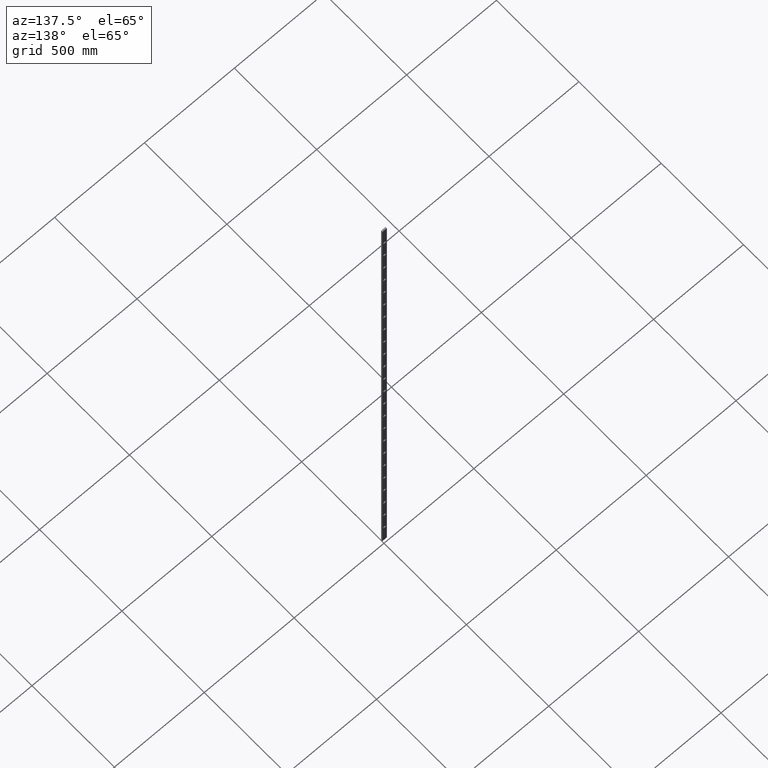
[diagram: clean part render]
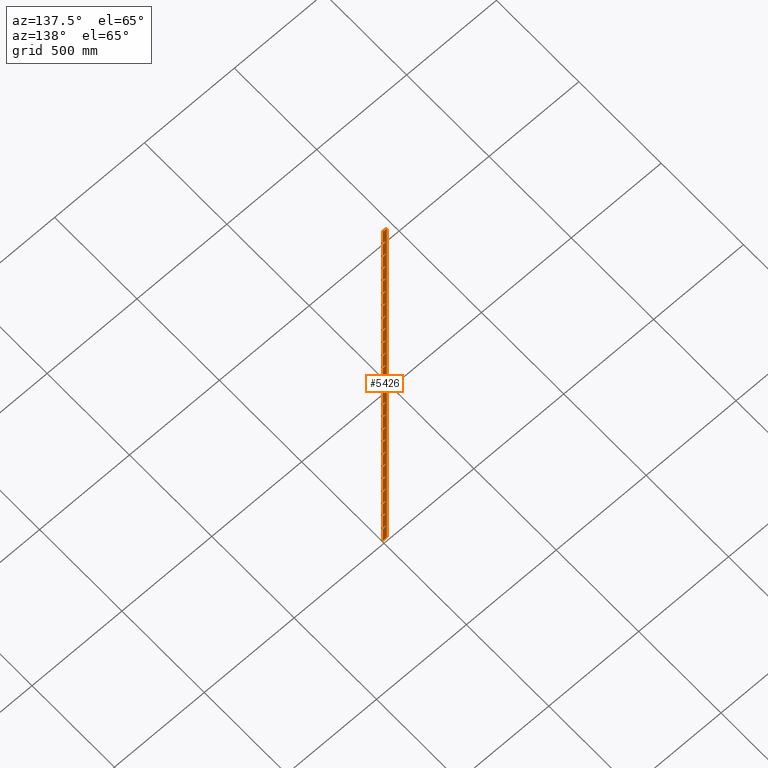
[diagram: same view with one face highlighted and labeled with its STEP entity id]
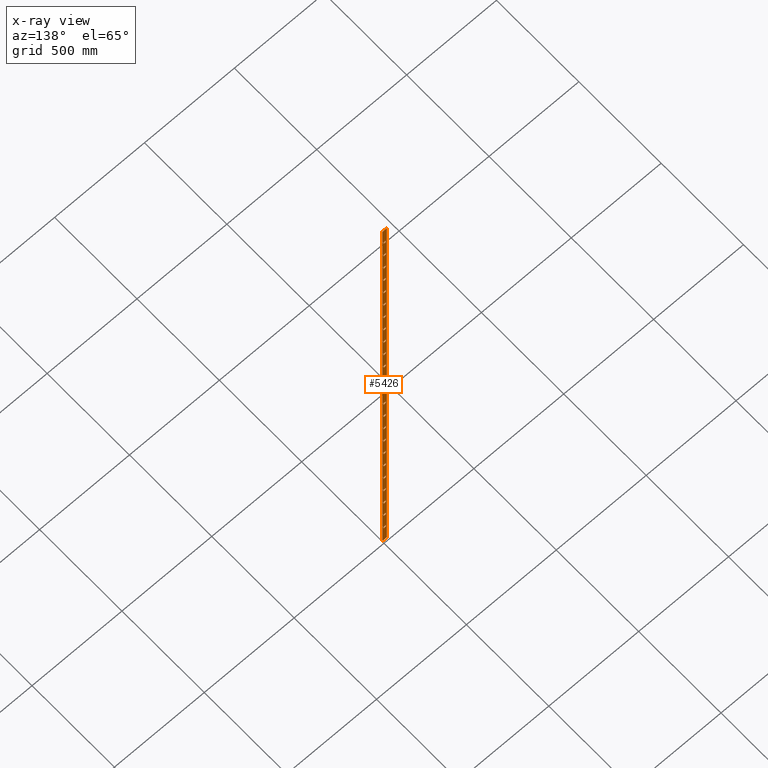
[diagram: x-ray of the same camera — body ghosted, the highlighted face saturated]
A machine part, auxiliary view. The second image highlights one B-rep face of the part: STEP entity #5426.
The next image is the same camera in x-ray: the body ghosted, the highlighted face saturated — about 0% of this face is hidden behind the body in this view.
In plain terms, the highlighted planar face has unit normal (0, 1, 0).
Its self-contained STEP definition (entity closure, byte-faithful):
#8 = ORIENTED_EDGE ( 'NONE', *, *, #14665, .F. ) ;
#11 = ORIENTED_EDGE ( 'NONE', *, *, #11156, .F. ) ;
#26 = ORIENTED_EDGE ( 'NONE', *, *, #15418, .F. ) ;
#81 = LINE ( 'NONE', #6964, #6857 ) ;
#104 = DIRECTION ( 'NONE',  ( 1.000000000000000000, 0.000000000000000000, 0.000000000000000000 ) ) ;
#112 = EDGE_LOOP ( 'NONE', ( #9555, #1159, #1870, #8434 ) ) ;
#122 = LINE ( 'NONE', #12544, #11552 ) ;
#132 = LINE ( 'NONE', #8218, #4790 ) ;
#136 = ORIENTED_EDGE ( 'NONE', *, *, #1789, .F. ) ;
#144 = LINE ( 'NONE', #11011, #15416 ) ;
#157 = CARTESIAN_POINT ( 'NONE',  ( -6.499999999999867661, 4.000000000000000000, -306.5000000000010800 ) ) ;
#205 = VECTOR ( 'NONE', #4922, 1000.000000000000000 ) ;
#257 = CARTESIAN_POINT ( 'NONE',  ( -6.499999999999674039, 4.000000000000000000, 1266.499999999997044 ) ) ;
#274 = VERTEX_POINT ( 'NONE', #16144 ) ;
#316 = ORIENTED_EDGE ( 'NONE', *, *, #3874, .F. ) ;
#320 = CARTESIAN_POINT ( 'NONE',  ( -6.499999999999718447, 4.000000000000000000, 906.4999999999976126 ) ) ;
#321 = CARTESIAN_POINT ( 'NONE',  ( -6.499999999999926281, 4.000000000000000000, -786.5000000000004547 ) ) ;
#333 = LINE ( 'NONE', #9687, #16670 ) ;
#381 = CARTESIAN_POINT ( 'NONE',  ( -6.499999999999704237, 4.000000000000000000, 1026.499999999997272 ) ) ;
#430 = VECTOR ( 'NONE', #4427, 1000.000000000000000 ) ;
#433 = VERTEX_POINT ( 'NONE', #6983 ) ;
#454 = VERTEX_POINT ( 'NONE', #4375 ) ;
#455 = LINE ( 'NONE', #1943, #14420 ) ;
#472 = EDGE_CURVE ( 'NONE', #6646, #8748, #1932, .T. ) ;
#567 = VECTOR ( 'NONE', #10297, 1000.000000000000000 ) ;
#595 = VECTOR ( 'NONE', #10506, 1000.000000000000000 ) ;
#609 = CARTESIAN_POINT ( 'NONE',  ( 6.500000000000087930, 4.000000000000000000, -666.5000000000005684 ) ) ;
#633 = LINE ( 'NONE', #11290, #4875 ) ;
#634 = DIRECTION ( 'NONE',  ( -1.000000000000000000, -0.000000000000000000, -0.000000000000000000 ) ) ;
#676 = CARTESIAN_POINT ( 'NONE',  ( 6.500000000000323297, 4.000000000000000000, 1266.499999999997044 ) ) ;
#692 = VECTOR ( 'NONE', #12667, 1000.000000000000000 ) ;
#715 = FACE_BOUND ( 'NONE', #1732, .T. ) ;
#731 = VERTEX_POINT ( 'NONE', #3787 ) ;
#741 = ORIENTED_EDGE ( 'NONE', *, *, #1764, .F. ) ;
#829 = CARTESIAN_POINT ( 'NONE',  ( -6.499999999999880096, 4.000000000000000000, -413.5000000000008527 ) ) ;
#832 = VERTEX_POINT ( 'NONE', #13553 ) ;
#838 = ORIENTED_EDGE ( 'NONE', *, *, #15717, .F. ) ;
#853 = CARTESIAN_POINT ( 'NONE',  ( -6.499999999999690914, 4.000000000000000000, 1133.499999999997499 ) ) ;
#858 = VECTOR ( 'NONE', #17502, 1000.000000000000000 ) ;
#867 = CARTESIAN_POINT ( 'NONE',  ( -6.499999999999881872, 4.000000000000000000, -426.5000000000007958 ) ) ;
#868 = ORIENTED_EDGE ( 'NONE', *, *, #7656, .F. ) ;
#870 = CARTESIAN_POINT ( 'NONE',  ( 12.50000000000000000, 4.000000000000000000, 1500.000000000000000 ) ) ;
#906 = DIRECTION ( 'NONE',  ( -0.000000000000000000, -0.000000000000000000, -1.000000000000000000 ) ) ;
#932 = EDGE_CURVE ( 'NONE', #11033, #15186, #9742, .T. ) ;
#950 = VECTOR ( 'NONE', #8914, 1000.000000000000000 ) ;
#987 = CARTESIAN_POINT ( 'NONE',  ( 6.500000000000117240, 4.000000000000000000, -426.5000000000007958 ) ) ;
#1026 = DIRECTION ( 'NONE',  ( 1.334402673828323446E-16, 0.000000000000000000, 1.000000000000000000 ) ) ;
#1064 = DIRECTION ( 'NONE',  ( 1.334402673828323446E-16, 0.000000000000000000, 1.000000000000000000 ) ) ;
#1079 = DIRECTION ( 'NONE',  ( -0.000000000000000000, -0.000000000000000000, -1.000000000000000000 ) ) ;
#1085 = VERTEX_POINT ( 'NONE', #7271 ) ;
#1108 = LINE ( 'NONE', #9952, #10840 ) ;
#1152 = VERTEX_POINT ( 'NONE', #5891 ) ;
#1159 = ORIENTED_EDGE ( 'NONE', *, *, #9698, .F. ) ;
#1197 = CARTESIAN_POINT ( 'NONE',  ( -6.499999999999865885, 4.000000000000000000, -293.5000000000011937 ) ) ;
#1200 = EDGE_LOOP ( 'NONE', ( #3992, #2651, #5140, #10631 ) ) ;
#1209 = VECTOR ( 'NONE', #7986, 1000.000000000000000 ) ;
#1222 = VERTEX_POINT ( 'NONE', #870 ) ;
#1224 = VECTOR ( 'NONE', #9019, 1000.000000000000000 ) ;
#1342 = FACE_BOUND ( 'NONE', #3926, .T. ) ;
#1383 = EDGE_LOOP ( 'NONE', ( #7542, #10688, #14170, #11117 ) ) ;
#1390 = VERTEX_POINT ( 'NONE', #10701 ) ;
#1391 = CARTESIAN_POINT ( 'NONE',  ( 6.500000000000058620, 4.000000000000000000, -906.5000000000003411 ) ) ;
#1393 = DIRECTION ( 'NONE',  ( 1.334402673828323446E-16, 0.000000000000000000, 1.000000000000000000 ) ) ;
#1411 = VERTEX_POINT ( 'NONE', #5522 ) ;
#1434 = CARTESIAN_POINT ( 'NONE',  ( -6.499999999999836575, 4.000000000000000000, -53.50000000000143530 ) ) ;
#1446 = VECTOR ( 'NONE', #12595, 1000.000000000000000 ) ;
#1489 = ORIENTED_EDGE ( 'NONE', *, *, #14560, .F. ) ;
#1509 = ORIENTED_EDGE ( 'NONE', *, *, #1794, .T. ) ;
#1520 = EDGE_CURVE ( 'NONE', #5485, #12857, #2113, .T. ) ;
#1557 = VERTEX_POINT ( 'NONE', #2200 ) ;
#1598 = VERTEX_POINT ( 'NONE', #11645 ) ;
#1611 = EDGE_CURVE ( 'NONE', #11000, #10613, #8483, .T. ) ;
#1613 = CARTESIAN_POINT ( 'NONE',  ( -6.499999999999690914, 4.000000000000000000, 1133.499999999997499 ) ) ;
#1615 = LINE ( 'NONE', #9216, #3081 ) ;
#1623 = ORIENTED_EDGE ( 'NONE', *, *, #12155, .F. ) ;
#1665 = EDGE_LOOP ( 'NONE', ( #14218, #12168, #17116, #8572 ) ) ;
#1693 = CARTESIAN_POINT ( 'NONE',  ( 6.500000000000029310, 4.000000000000000000, -1146.500000000000000 ) ) ;
#1732 = EDGE_LOOP ( 'NONE', ( #13992, #2344, #7721, #4944 ) ) ;
#1734 = EDGE_CURVE ( 'NONE', #832, #15597, #13099, .T. ) ;
#1764 = EDGE_CURVE ( 'NONE', #12073, #14718, #3594, .T. ) ;
#1767 = CARTESIAN_POINT ( 'NONE',  ( -6.499999999999823252, 4.000000000000000000, 53.49999999999855049 ) ) ;
#1789 = EDGE_CURVE ( 'NONE', #2373, #15051, #633, .T. ) ;
#1794 = EDGE_CURVE ( 'NONE', #2280, #5553, #4652, .T. ) ;
#1823 = CARTESIAN_POINT ( 'NONE',  ( -6.499999999999689138, 4.000000000000000000, 1146.499999999997499 ) ) ;
#1833 = CARTESIAN_POINT ( 'NONE',  ( 12.50000000000000000, 4.000000000000000000, -1500.000000000000000 ) ) ;
#1857 = LINE ( 'NONE', #10110, #17332 ) ;
#1870 = ORIENTED_EDGE ( 'NONE', *, *, #14455, .F. ) ;
#1932 = LINE ( 'NONE', #11118, #16153 ) ;
#1943 = CARTESIAN_POINT ( 'NONE',  ( -6.499999999999909406, 4.000000000000000000, -653.5000000000006821 ) ) ;
#1956 = CARTESIAN_POINT ( 'NONE',  ( -6.499999999999675815, 4.000000000000000000, 1253.499999999997272 ) ) ;
#1960 = EDGE_LOOP ( 'NONE', ( #10598, #1509, #7498, #7367 ) ) ;
#1975 = DIRECTION ( 'NONE',  ( -1.000000000000000000, -0.000000000000000000, -0.000000000000000000 ) ) ;
#1985 = LINE ( 'NONE', #7493, #10877 ) ;
#1990 = DIRECTION ( 'NONE',  ( -0.000000000000000000, -0.000000000000000000, -1.000000000000000000 ) ) ;
#1993 = EDGE_CURVE ( 'NONE', #2796, #832, #14601, .T. ) ;
#2009 = LINE ( 'NONE', #7445, #15831 ) ;
#2025 = LINE ( 'NONE', #7640, #9630 ) ;
#2026 = VERTEX_POINT ( 'NONE', #11528 ) ;
#2041 = LINE ( 'NONE', #1613, #16066 ) ;
#2095 = VECTOR ( 'NONE', #6874, 1000.000000000000000 ) ;
#2113 = LINE ( 'NONE', #12144, #12461 ) ;
#2132 = VECTOR ( 'NONE', #12729, 1000.000000000000000 ) ;
#2134 = DIRECTION ( 'NONE',  ( -1.000000000000000000, -0.000000000000000000, -0.000000000000000000 ) ) ;
#2138 = VECTOR ( 'NONE', #2134, 1000.000000000000000 ) ;
#2168 = VERTEX_POINT ( 'NONE', #9111 ) ;
#2200 = CARTESIAN_POINT ( 'NONE',  ( -6.499999999999909406, 4.000000000000000000, -653.5000000000006821 ) ) ;
#2262 = CARTESIAN_POINT ( 'NONE',  ( 6.500000000000234479, 4.000000000000000000, 533.4999999999980673 ) ) ;
#2280 = VERTEX_POINT ( 'NONE', #15439 ) ;
#2292 = VERTEX_POINT ( 'NONE', #15753 ) ;
#2299 = CARTESIAN_POINT ( 'NONE',  ( -6.499999999999895195, 4.000000000000000000, -533.5000000000007958 ) ) ;
#2344 = ORIENTED_EDGE ( 'NONE', *, *, #1611, .F. ) ;
#2368 = CARTESIAN_POINT ( 'NONE',  ( -6.499999999999807265, 4.000000000000000000, 186.4999999999983231 ) ) ;
#2373 = VERTEX_POINT ( 'NONE', #13417 ) ;
#2389 = ORIENTED_EDGE ( 'NONE', *, *, #3931, .F. ) ;
#2446 = VECTOR ( 'NONE', #7150, 1000.000000000000000 ) ;
#2456 = VECTOR ( 'NONE', #6204, 1000.000000000000000 ) ;
#2488 = EDGE_CURVE ( 'NONE', #15597, #16730, #5681, .T. ) ;
#2496 = CARTESIAN_POINT ( 'NONE',  ( -6.499999999999924505, 4.000000000000000000, -773.5000000000005684 ) ) ;
#2508 = DIRECTION ( 'NONE',  ( -0.000000000000000000, -0.000000000000000000, -1.000000000000000000 ) ) ;
#2598 = VECTOR ( 'NONE', #13050, 1000.000000000000000 ) ;
#2599 = DIRECTION ( 'NONE',  ( 1.000000000000000000, 0.000000000000000000, 0.000000000000000000 ) ) ;
#2618 = FACE_BOUND ( 'NONE', #8747, .T. ) ;
#2632 = EDGE_LOOP ( 'NONE', ( #11428, #3205, #4092, #8 ) ) ;
#2651 = ORIENTED_EDGE ( 'NONE', *, *, #16377, .F. ) ;
#2681 = CARTESIAN_POINT ( 'NONE',  ( 6.500000000000249578, 4.000000000000000000, 666.4999999999978400 ) ) ;
#2686 = CARTESIAN_POINT ( 'NONE',  ( -6.499999999999706013, 4.000000000000000000, 1013.499999999997385 ) ) ;
#2700 = LINE ( 'NONE', #14736, #1209 ) ;
#2705 = DIRECTION ( 'NONE',  ( -0.000000000000000000, -0.000000000000000000, -1.000000000000000000 ) ) ;
#2730 = EDGE_CURVE ( 'NONE', #8695, #6849, #9690, .T. ) ;
#2772 = ORIENTED_EDGE ( 'NONE', *, *, #932, .F. ) ;
#2776 = DIRECTION ( 'NONE',  ( -0.000000000000000000, -0.000000000000000000, -1.000000000000000000 ) ) ;
#2796 = VERTEX_POINT ( 'NONE', #12137 ) ;
#2804 = LINE ( 'NONE', #4329, #17458 ) ;
#2808 = VECTOR ( 'NONE', #5715, 1000.000000000000000 ) ;
#2824 = DIRECTION ( 'NONE',  ( -0.000000000000000000, -0.000000000000000000, -1.000000000000000000 ) ) ;
#2847 = VECTOR ( 'NONE', #2776, 1000.000000000000000 ) ;
#2848 = CARTESIAN_POINT ( 'NONE',  ( 6.500000000000117240, 4.000000000000000000, -413.5000000000008527 ) ) ;
#2856 = VECTOR ( 'NONE', #634, 1000.000000000000000 ) ;
#2888 = DIRECTION ( 'NONE',  ( -1.000000000000000000, -0.000000000000000000, -0.000000000000000000 ) ) ;
#2893 = DIRECTION ( 'NONE',  ( 1.334402673828323446E-16, 0.000000000000000000, 1.000000000000000000 ) ) ;
#2906 = VECTOR ( 'NONE', #14764, 1000.000000000000000 ) ;
#2925 = VECTOR ( 'NONE', #10433, 1000.000000000000000 ) ;
#2934 = EDGE_CURVE ( 'NONE', #1222, #2280, #10968, .T. ) ;
#2974 = VERTEX_POINT ( 'NONE', #12401 ) ;
#3019 = DIRECTION ( 'NONE',  ( 1.000000000000000000, 0.000000000000000000, 0.000000000000000000 ) ) ;
#3036 = FACE_BOUND ( 'NONE', #10480, .T. ) ;
#3049 = LINE ( 'NONE', #9736, #3889 ) ;
#3075 = EDGE_LOOP ( 'NONE', ( #26, #3540, #16780, #14277 ) ) ;
#3077 = CARTESIAN_POINT ( 'NONE',  ( -6.499999999999968914, 4.000000000000000000, -1133.500000000000227 ) ) ;
#3081 = VECTOR ( 'NONE', #16018, 1000.000000000000000 ) ;
#3085 = VERTEX_POINT ( 'NONE', #11697 ) ;
#3094 = LINE ( 'NONE', #8012, #9239 ) ;
#3118 = VERTEX_POINT ( 'NONE', #14497 ) ;
#3124 = DIRECTION ( 'NONE',  ( 1.334402673828323446E-16, 0.000000000000000000, 1.000000000000000000 ) ) ;
#3152 = EDGE_LOOP ( 'NONE', ( #14832, #8920, #1489, #5782 ) ) ;
#3161 = VERTEX_POINT ( 'NONE', #5035 ) ;
#3173 = VERTEX_POINT ( 'NONE', #14676 ) ;
#3187 = CARTESIAN_POINT ( 'NONE',  ( -6.499999999999735323, 4.000000000000000000, 773.4999999999976126 ) ) ;
#3196 = DIRECTION ( 'NONE',  ( 1.334402673828323446E-16, 0.000000000000000000, 1.000000000000000000 ) ) ;
#3205 = ORIENTED_EDGE ( 'NONE', *, *, #9663, .F. ) ;
#3208 = DIRECTION ( 'NONE',  ( 1.000000000000000000, 0.000000000000000000, 0.000000000000000000 ) ) ;
#3220 = CARTESIAN_POINT ( 'NONE',  ( 6.500000000000278888, 4.000000000000000000, 893.4999999999977263 ) ) ;
#3242 = EDGE_CURVE ( 'NONE', #6655, #3161, #7971, .T. ) ;
#3254 = VERTEX_POINT ( 'NONE', #9334 ) ;
#3275 = VECTOR ( 'NONE', #6629, 1000.000000000000000 ) ;
#3277 = CARTESIAN_POINT ( 'NONE',  ( 6.500000000000293987, 4.000000000000000000, 1026.499999999997272 ) ) ;
#3319 = ORIENTED_EDGE ( 'NONE', *, *, #5252, .F. ) ;
#3374 = CARTESIAN_POINT ( 'NONE',  ( 6.500000000000117240, 4.000000000000000000, -426.5000000000007958 ) ) ;
#3397 = CARTESIAN_POINT ( 'NONE',  ( 6.500000000000190958, 4.000000000000000000, 186.4999999999983231 ) ) ;
#3416 = VERTEX_POINT ( 'NONE', #12739 ) ;
#3458 = VECTOR ( 'NONE', #15660, 1000.000000000000000 ) ;
#3481 = EDGE_CURVE ( 'NONE', #1152, #16333, #122, .T. ) ;
#3540 = ORIENTED_EDGE ( 'NONE', *, *, #10876, .F. ) ;
#3553 = LINE ( 'NONE', #7818, #1224 ) ;
#3579 = CARTESIAN_POINT ( 'NONE',  ( -6.499999999999911182, 4.000000000000000000, -666.5000000000005684 ) ) ;
#3594 = LINE ( 'NONE', #3187, #7832 ) ;
#3607 = CARTESIAN_POINT ( 'NONE',  ( -6.499999999999838352, 4.000000000000000000, -66.50000000000133582 ) ) ;
#3615 = CARTESIAN_POINT ( 'NONE',  ( -6.499999999999865885, 4.000000000000000000, -293.5000000000011937 ) ) ;
#3623 = CARTESIAN_POINT ( 'NONE',  ( -6.499999999999926281, 4.000000000000000000, -786.5000000000004547 ) ) ;
#3625 = VERTEX_POINT ( 'NONE', #11204 ) ;
#3633 = CARTESIAN_POINT ( 'NONE',  ( 6.500000000000323297, 4.000000000000000000, 1253.499999999997272 ) ) ;
#3657 = VERTEX_POINT ( 'NONE', #9410 ) ;
#3659 = FACE_OUTER_BOUND ( 'NONE', #1960, .T. ) ;
#3669 = EDGE_CURVE ( 'NONE', #5702, #7916, #13872, .T. ) ;
#3691 = CARTESIAN_POINT ( 'NONE',  ( 6.500000000000293987, 4.000000000000000000, 1013.499999999997385 ) ) ;
#3755 = DIRECTION ( 'NONE',  ( 1.000000000000000000, 0.000000000000000000, 0.000000000000000000 ) ) ;
#3757 = LINE ( 'NONE', #867, #16493 ) ;
#3779 = EDGE_LOOP ( 'NONE', ( #9074, #13528, #17179, #12552 ) ) ;
#3787 = CARTESIAN_POINT ( 'NONE',  ( -6.499999999999998224, 4.000000000000000000, -1373.500000000000000 ) ) ;
#3832 = LINE ( 'NONE', #5484, #12916 ) ;
#3874 = EDGE_CURVE ( 'NONE', #454, #433, #6883, .T. ) ;
#3887 = CARTESIAN_POINT ( 'NONE',  ( 6.500000000000014211, 4.000000000000000000, -1253.499999999999773 ) ) ;
#3889 = VECTOR ( 'NONE', #2824, 1000.000000000000000 ) ;
#3890 = ORIENTED_EDGE ( 'NONE', *, *, #8901, .F. ) ;
#3894 = EDGE_LOOP ( 'NONE', ( #17587, #8152, #11101, #13069 ) ) ;
#3926 = EDGE_LOOP ( 'NONE', ( #3974, #6628, #17143, #9428 ) ) ;
#3931 = EDGE_CURVE ( 'NONE', #3118, #10992, #8386, .T. ) ;
#3939 = VECTOR ( 'NONE', #7127, 1000.000000000000000 ) ;
#3948 = CARTESIAN_POINT ( 'NONE',  ( 6.500000000000058620, 4.000000000000000000, -906.5000000000003411 ) ) ;
#3974 = ORIENTED_EDGE ( 'NONE', *, *, #3242, .F. ) ;
#3992 = ORIENTED_EDGE ( 'NONE', *, *, #15915, .F. ) ;
#3994 = EDGE_CURVE ( 'NONE', #14718, #11033, #9833, .T. ) ;
#4012 = CARTESIAN_POINT ( 'NONE',  ( 6.500000000000043521, 4.000000000000000000, -1026.500000000000227 ) ) ;
#4042 = DIRECTION ( 'NONE',  ( 1.334402673828323446E-16, 0.000000000000000000, 1.000000000000000000 ) ) ;
#4043 = CARTESIAN_POINT ( 'NONE',  ( 0.000000000000000000, 4.000000000000000000, 0.000000000000000000 ) ) ;
#4048 = EDGE_CURVE ( 'NONE', #8778, #5162, #10069, .T. ) ;
#4092 = ORIENTED_EDGE ( 'NONE', *, *, #17154, .F. ) ;
#4094 = DIRECTION ( 'NONE',  ( -0.000000000000000000, -0.000000000000000000, -1.000000000000000000 ) ) ;
#4101 = CARTESIAN_POINT ( 'NONE',  ( -6.499999999999747757, 4.000000000000000000, 666.4999999999978400 ) ) ;
#4193 = VECTOR ( 'NONE', #6992, 1000.000000000000000 ) ;
#4201 = EDGE_CURVE ( 'NONE', #6894, #11612, #333, .T. ) ;
#4220 = DIRECTION ( 'NONE',  ( 0.000000000000000000, 1.000000000000000000, 0.000000000000000000 ) ) ;
#4259 = VERTEX_POINT ( 'NONE', #1693 ) ;
#4280 = VERTEX_POINT ( 'NONE', #4101 ) ;
#4308 = FACE_BOUND ( 'NONE', #16086, .T. ) ;
#4320 = CARTESIAN_POINT ( 'NONE',  ( 6.500000000000000000, 4.000000000000000000, -1373.500000000000000 ) ) ;
#4329 = CARTESIAN_POINT ( 'NONE',  ( -6.499999999999762856, 4.000000000000000000, 546.4999999999979536 ) ) ;
#4349 = LINE ( 'NONE', #829, #567 ) ;
#4353 = CARTESIAN_POINT ( 'NONE',  ( 6.500000000000029310, 4.000000000000000000, -1146.500000000000000 ) ) ;
#4375 = CARTESIAN_POINT ( 'NONE',  ( -6.499999999999777955, 4.000000000000000000, 426.4999999999981242 ) ) ;
#4376 = DIRECTION ( 'NONE',  ( 1.000000000000000000, 0.000000000000000000, 0.000000000000000000 ) ) ;
#4379 = VECTOR ( 'NONE', #15876, 1000.000000000000000 ) ;
#4402 = ORIENTED_EDGE ( 'NONE', *, *, #4987, .F. ) ;
#4427 = DIRECTION ( 'NONE',  ( 1.334402673828323446E-16, 0.000000000000000000, 1.000000000000000000 ) ) ;
#4441 = DIRECTION ( 'NONE',  ( 1.000000000000000000, 0.000000000000000000, 0.000000000000000000 ) ) ;
#4455 = DIRECTION ( 'NONE',  ( 1.334402673828323446E-16, 0.000000000000000000, 1.000000000000000000 ) ) ;
#4484 = CARTESIAN_POINT ( 'NONE',  ( 6.500000000000205169, 4.000000000000000000, 293.4999999999982947 ) ) ;
#4522 = ORIENTED_EDGE ( 'NONE', *, *, #9417, .F. ) ;
#4527 = CARTESIAN_POINT ( 'NONE',  ( 6.500000000000043521, 4.000000000000000000, -1013.500000000000341 ) ) ;
#4538 = ORIENTED_EDGE ( 'NONE', *, *, #3669, .F. ) ;
#4587 = EDGE_CURVE ( 'NONE', #11971, #3173, #9602, .T. ) ;
#4612 = LINE ( 'NONE', #17280, #595 ) ;
#4625 = ORIENTED_EDGE ( 'NONE', *, *, #1734, .F. ) ;
#4652 = LINE ( 'NONE', #1833, #15924 ) ;
#4658 = CARTESIAN_POINT ( 'NONE',  ( -6.499999999999720224, 4.000000000000000000, 893.4999999999977263 ) ) ;
#4670 = DIRECTION ( 'NONE',  ( -1.000000000000000000, -0.000000000000000000, -0.000000000000000000 ) ) ;
#4685 = EDGE_LOOP ( 'NONE', ( #12518, #316, #11880, #868 ) ) ;
#4709 = ORIENTED_EDGE ( 'NONE', *, *, #11365, .F. ) ;
#4712 = VECTOR ( 'NONE', #15380, 1000.000000000000000 ) ;
#4748 = VECTOR ( 'NONE', #13541, 1000.000000000000000 ) ;
#4753 = VECTOR ( 'NONE', #1064, 1000.000000000000000 ) ;
#4790 = VECTOR ( 'NONE', #104, 1000.000000000000000 ) ;
#4875 = VECTOR ( 'NONE', #4670, 1000.000000000000000 ) ;
#4922 = DIRECTION ( 'NONE',  ( 1.000000000000000000, 0.000000000000000000, 0.000000000000000000 ) ) ;
#4928 = VERTEX_POINT ( 'NONE', #3397 ) ;
#4944 = ORIENTED_EDGE ( 'NONE', *, *, #17405, .F. ) ;
#4954 = DIRECTION ( 'NONE',  ( 1.000000000000000000, 0.000000000000000000, 0.000000000000000000 ) ) ;
#4958 = VERTEX_POINT ( 'NONE', #6106 ) ;
#4966 = VERTEX_POINT ( 'NONE', #853 ) ;
#4987 = EDGE_CURVE ( 'NONE', #11990, #14826, #1985, .T. ) ;
#4994 = VECTOR ( 'NONE', #1393, 1000.000000000000000 ) ;
#5025 = VECTOR ( 'NONE', #4094, 1000.000000000000000 ) ;
#5031 = DIRECTION ( 'NONE',  ( -1.000000000000000000, -0.000000000000000000, -0.000000000000000000 ) ) ;
#5035 = CARTESIAN_POINT ( 'NONE',  ( 6.500000000000146549, 4.000000000000000000, -186.5000000000012221 ) ) ;
#5041 = VECTOR ( 'NONE', #3755, 1000.000000000000000 ) ;
#5043 = CARTESIAN_POINT ( 'NONE',  ( -6.499999999999792166, 4.000000000000000000, 306.4999999999982379 ) ) ;
#5063 = CARTESIAN_POINT ( 'NONE',  ( -6.499999999999733546, 4.000000000000000000, 786.4999999999974989 ) ) ;
#5100 = EDGE_CURVE ( 'NONE', #5553, #17245, #81, .T. ) ;
#5106 = VERTEX_POINT ( 'NONE', #1823 ) ;
#5108 = VERTEX_POINT ( 'NONE', #16465 ) ;
#5116 = DIRECTION ( 'NONE',  ( -1.000000000000000000, -0.000000000000000000, -0.000000000000000000 ) ) ;
#5140 = ORIENTED_EDGE ( 'NONE', *, *, #15289, .F. ) ;
#5146 = CARTESIAN_POINT ( 'NONE',  ( -6.499999999999706013, 4.000000000000000000, 1013.499999999997385 ) ) ;
#5162 = VERTEX_POINT ( 'NONE', #15513 ) ;
#5177 = DIRECTION ( 'NONE',  ( -0.000000000000000000, -0.000000000000000000, -1.000000000000000000 ) ) ;
#5189 = VECTOR ( 'NONE', #14172, 1000.000000000000000 ) ;
#5218 = CARTESIAN_POINT ( 'NONE',  ( -6.499999999999896083, 4.000000000000000000, -546.5000000000006821 ) ) ;
#5252 = EDGE_CURVE ( 'NONE', #4259, #11990, #6428, .T. ) ;
#5294 = CARTESIAN_POINT ( 'NONE',  ( -6.499999999999675815, 4.000000000000000000, 1253.499999999997272 ) ) ;
#5318 = CARTESIAN_POINT ( 'NONE',  ( 6.500000000000205169, 4.000000000000000000, 293.4999999999982947 ) ) ;
#5361 = FACE_BOUND ( 'NONE', #10279, .T. ) ;
#5426 = ADVANCED_FACE ( 'NONE', ( #3659, #14898, #17045, #2618, #5783, #8986, #4308, #3036, #5361, #13820, #715, #1342, #6624, #14698, #16632, #7285, #8125, #17251, #11288, #12967, #10009, #11076, #8562, #15790, #7703 ), #14660, .T. ) ;
#5466 = VERTEX_POINT ( 'NONE', #6955 ) ;
#5484 = CARTESIAN_POINT ( 'NONE',  ( -6.499999999999823252, 4.000000000000000000, 53.49999999999855049 ) ) ;
#5485 = VERTEX_POINT ( 'NONE', #16585 ) ;
#5508 = LINE ( 'NONE', #3579, #12045 ) ;
#5522 = CARTESIAN_POINT ( 'NONE',  ( 6.500000000000131450, 4.000000000000000000, -306.5000000000010800 ) ) ;
#5553 = VERTEX_POINT ( 'NONE', #13916 ) ;
#5563 = LINE ( 'NONE', #5294, #15997 ) ;
#5638 = VECTOR ( 'NONE', #14893, 1000.000000000000000 ) ;
#5676 = CARTESIAN_POINT ( 'NONE',  ( -6.499999999999779732, 4.000000000000000000, 413.4999999999981810 ) ) ;
#5681 = LINE ( 'NONE', #1434, #2095 ) ;
#5702 = VERTEX_POINT ( 'NONE', #2299 ) ;
#5715 = DIRECTION ( 'NONE',  ( -0.000000000000000000, -0.000000000000000000, -1.000000000000000000 ) ) ;
#5719 = CARTESIAN_POINT ( 'NONE',  ( -6.499999999999838352, 4.000000000000000000, -66.50000000000133582 ) ) ;
#5764 = LINE ( 'NONE', #13277, #13372 ) ;
#5782 = ORIENTED_EDGE ( 'NONE', *, *, #16951, .F. ) ;
#5783 = FACE_BOUND ( 'NONE', #16228, .T. ) ;
#5785 = DIRECTION ( 'NONE',  ( -1.000000000000000000, 0.000000000000000000, 0.000000000000000000 ) ) ;
#5891 = CARTESIAN_POINT ( 'NONE',  ( -6.499999999999720224, 4.000000000000000000, 893.4999999999977263 ) ) ;
#5980 = EDGE_CURVE ( 'NONE', #5466, #4966, #12748, .T. ) ;
#5984 = VECTOR ( 'NONE', #1975, 1000.000000000000000 ) ;
#6014 = DIRECTION ( 'NONE',  ( 1.334402673828323446E-16, 0.000000000000000000, 1.000000000000000000 ) ) ;
#6060 = CARTESIAN_POINT ( 'NONE',  ( -6.499999999999867661, 4.000000000000000000, -306.5000000000010800 ) ) ;
#6102 = VECTOR ( 'NONE', #7452, 1000.000000000000000 ) ;
#6106 = CARTESIAN_POINT ( 'NONE',  ( -6.499999999999779732, 4.000000000000000000, 413.4999999999981810 ) ) ;
#6113 = VERTEX_POINT ( 'NONE', #14313 ) ;
#6128 = CARTESIAN_POINT ( 'NONE',  ( -6.499999999999809042, 4.000000000000000000, 173.4999999999984368 ) ) ;
#6139 = VECTOR ( 'NONE', #13079, 1000.000000000000000 ) ;
#6183 = ORIENTED_EDGE ( 'NONE', *, *, #1993, .F. ) ;
#6190 = LINE ( 'NONE', #7591, #2598 ) ;
#6199 = LINE ( 'NONE', #10165, #12757 ) ;
#6204 = DIRECTION ( 'NONE',  ( -0.000000000000000000, -0.000000000000000000, -1.000000000000000000 ) ) ;
#6212 = EDGE_CURVE ( 'NONE', #3085, #9106, #6190, .T. ) ;
#6237 = EDGE_CURVE ( 'NONE', #13547, #9984, #12767, .T. ) ;
#6260 = VECTOR ( 'NONE', #3019, 1000.000000000000000 ) ;
#6287 = EDGE_CURVE ( 'NONE', #7226, #11376, #8359, .T. ) ;
#6296 = VECTOR ( 'NONE', #5177, 1000.000000000000000 ) ;
#6318 = CARTESIAN_POINT ( 'NONE',  ( -6.499999999999733546, 4.000000000000000000, 786.4999999999974989 ) ) ;
#6350 = CARTESIAN_POINT ( 'NONE',  ( -6.499999999999938716, 4.000000000000000000, -893.5000000000004547 ) ) ;
#6352 = CARTESIAN_POINT ( 'NONE',  ( -6.499999999999807265, 4.000000000000000000, 186.4999999999983231 ) ) ;
#6373 = ORIENTED_EDGE ( 'NONE', *, *, #17004, .F. ) ;
#6375 = LINE ( 'NONE', #17153, #8098 ) ;
#6415 = EDGE_CURVE ( 'NONE', #11354, #2168, #13590, .T. ) ;
#6428 = LINE ( 'NONE', #15066, #4748 ) ;
#6451 = LINE ( 'NONE', #4012, #2847 ) ;
#6453 = ORIENTED_EDGE ( 'NONE', *, *, #9670, .F. ) ;
#6495 = LINE ( 'NONE', #13491, #5638 ) ;
#6500 = CARTESIAN_POINT ( 'NONE',  ( -6.499999999999764633, 4.000000000000000000, 533.4999999999980673 ) ) ;
#6552 = CARTESIAN_POINT ( 'NONE',  ( 6.500000000000278888, 4.000000000000000000, 893.4999999999977263 ) ) ;
#6556 = ORIENTED_EDGE ( 'NONE', *, *, #10081, .F. ) ;
#6559 = LINE ( 'NONE', #3633, #6139 ) ;
#6596 = CARTESIAN_POINT ( 'NONE',  ( 6.500000000000058620, 4.000000000000000000, -893.5000000000004547 ) ) ;
#6603 = VECTOR ( 'NONE', #16362, 1000.000000000000000 ) ;
#6624 = FACE_BOUND ( 'NONE', #6938, .T. ) ;
#6628 = ORIENTED_EDGE ( 'NONE', *, *, #16058, .F. ) ;
#6629 = DIRECTION ( 'NONE',  ( -0.000000000000000000, -0.000000000000000000, -1.000000000000000000 ) ) ;
#6636 = VERTEX_POINT ( 'NONE', #1956 ) ;
#6646 = VERTEX_POINT ( 'NONE', #609 ) ;
#6653 = LINE ( 'NONE', #14340, #950 ) ;
#6655 = VERTEX_POINT ( 'NONE', #7305 ) ;
#6700 = VECTOR ( 'NONE', #2508, 1000.000000000000000 ) ;
#6710 = DIRECTION ( 'NONE',  ( 1.000000000000000000, -0.000000000000000000, -0.000000000000000000 ) ) ;
#6825 = LINE ( 'NONE', #6060, #5984 ) ;
#6829 = DIRECTION ( 'NONE',  ( 1.334402673828323446E-16, 0.000000000000000000, 1.000000000000000000 ) ) ;
#6849 = VERTEX_POINT ( 'NONE', #2262 ) ;
#6857 = VECTOR ( 'NONE', #7211, 1000.000000000000000 ) ;
#6865 = LINE ( 'NONE', #3077, #8150 ) ;
#6872 = CARTESIAN_POINT ( 'NONE',  ( 6.500000000000205169, 4.000000000000000000, 306.4999999999982379 ) ) ;
#6874 = DIRECTION ( 'NONE',  ( 1.000000000000000000, 0.000000000000000000, 0.000000000000000000 ) ) ;
#6883 = LINE ( 'NONE', #13924, #2446 ) ;
#6894 = VERTEX_POINT ( 'NONE', #13703 ) ;
#6915 = CARTESIAN_POINT ( 'NONE',  ( 6.500000000000220268, 4.000000000000000000, 413.4999999999981810 ) ) ;
#6938 = EDGE_LOOP ( 'NONE', ( #10005, #14515, #4625, #6183 ) ) ;
#6951 = ORIENTED_EDGE ( 'NONE', *, *, #11912, .F. ) ;
#6955 = CARTESIAN_POINT ( 'NONE',  ( 6.500000000000308198, 4.000000000000000000, 1133.499999999997499 ) ) ;
#6964 = CARTESIAN_POINT ( 'NONE',  ( -12.50000000000000000, 4.000000000000000000, 1500.000000000000000 ) ) ;
#6969 = VERTEX_POINT ( 'NONE', #6596 ) ;
#6983 = CARTESIAN_POINT ( 'NONE',  ( 6.500000000000220268, 4.000000000000000000, 426.4999999999981242 ) ) ;
#6992 = DIRECTION ( 'NONE',  ( 0.000000000000000000, 0.000000000000000000, -1.000000000000000000 ) ) ;
#7037 = LINE ( 'NONE', #12546, #4712 ) ;
#7056 = LINE ( 'NONE', #7135, #3458 ) ;
#7127 = DIRECTION ( 'NONE',  ( 1.334402673828323446E-16, 0.000000000000000000, 1.000000000000000000 ) ) ;
#7135 = CARTESIAN_POINT ( 'NONE',  ( 6.500000000000249578, 4.000000000000000000, 653.4999999999979536 ) ) ;
#7150 = DIRECTION ( 'NONE',  ( 1.000000000000000000, 0.000000000000000000, 0.000000000000000000 ) ) ;
#7162 = DIRECTION ( 'NONE',  ( -0.000000000000000000, -0.000000000000000000, -1.000000000000000000 ) ) ;
#7195 = DIRECTION ( 'NONE',  ( -1.000000000000000000, -0.000000000000000000, -0.000000000000000000 ) ) ;
#7206 = ORIENTED_EDGE ( 'NONE', *, *, #472, .F. ) ;
#7211 = DIRECTION ( 'NONE',  ( -0.000000000000000000, -0.000000000000000000, 1.000000000000000000 ) ) ;
#7226 = VERTEX_POINT ( 'NONE', #1767 ) ;
#7256 = VERTEX_POINT ( 'NONE', #16830 ) ;
#7260 = EDGE_CURVE ( 'NONE', #14015, #3625, #7056, .T. ) ;
#7271 = CARTESIAN_POINT ( 'NONE',  ( 6.500000000000190958, 4.000000000000000000, 173.4999999999984368 ) ) ;
#7285 = FACE_BOUND ( 'NONE', #13691, .T. ) ;
#7288 = CARTESIAN_POINT ( 'NONE',  ( -6.499999999999867661, 4.000000000000000000, -306.5000000000010800 ) ) ;
#7305 = CARTESIAN_POINT ( 'NONE',  ( 6.500000000000146549, 4.000000000000000000, -173.5000000000013074 ) ) ;
#7344 = EDGE_CURVE ( 'NONE', #13901, #15563, #5764, .T. ) ;
#7346 = VERTEX_POINT ( 'NONE', #3948 ) ;
#7367 = ORIENTED_EDGE ( 'NONE', *, *, #11812, .T. ) ;
#7401 = VERTEX_POINT ( 'NONE', #15662 ) ;
#7411 = VECTOR ( 'NONE', #14374, 1000.000000000000000 ) ;
#7416 = CARTESIAN_POINT ( 'NONE',  ( 6.500000000000338396, 4.000000000000000000, 1373.499999999997272 ) ) ;
#7445 = CARTESIAN_POINT ( 'NONE',  ( 6.500000000000160760, 4.000000000000000000, -66.50000000000133582 ) ) ;
#7452 = DIRECTION ( 'NONE',  ( -0.000000000000000000, -0.000000000000000000, -1.000000000000000000 ) ) ;
#7493 = CARTESIAN_POINT ( 'NONE',  ( -6.499999999999969802, 4.000000000000000000, -1146.500000000000000 ) ) ;
#7498 = ORIENTED_EDGE ( 'NONE', *, *, #5100, .T. ) ;
#7542 = ORIENTED_EDGE ( 'NONE', *, *, #15612, .F. ) ;
#7560 = LINE ( 'NONE', #5676, #3939 ) ;
#7591 = CARTESIAN_POINT ( 'NONE',  ( -6.499999999999793943, 4.000000000000000000, 293.4999999999982947 ) ) ;
#7602 = EDGE_CURVE ( 'NONE', #4280, #14015, #15533, .T. ) ;
#7628 = CARTESIAN_POINT ( 'NONE',  ( -6.499999999999851674, 4.000000000000000000, -173.5000000000013074 ) ) ;
#7640 = CARTESIAN_POINT ( 'NONE',  ( -6.499999999999675815, 4.000000000000000000, 1253.499999999997272 ) ) ;
#7656 = EDGE_CURVE ( 'NONE', #274, #4958, #1108, .T. ) ;
#7680 = EDGE_CURVE ( 'NONE', #10992, #5702, #7037, .T. ) ;
#7703 = FACE_BOUND ( 'NONE', #11306, .T. ) ;
#7721 = ORIENTED_EDGE ( 'NONE', *, *, #9140, .F. ) ;
#7735 = CARTESIAN_POINT ( 'NONE',  ( -6.499999999999953815, 4.000000000000000000, -1013.500000000000341 ) ) ;
#7747 = VERTEX_POINT ( 'NONE', #676 ) ;
#7789 = CARTESIAN_POINT ( 'NONE',  ( 6.500000000000264677, 4.000000000000000000, 773.4999999999976126 ) ) ;
#7818 = CARTESIAN_POINT ( 'NONE',  ( -6.499999999999940492, 4.000000000000000000, -906.5000000000003411 ) ) ;
#7832 = VECTOR ( 'NONE', #9917, 1000.000000000000000 ) ;
#7875 = ORIENTED_EDGE ( 'NONE', *, *, #14782, .F. ) ;
#7887 = CARTESIAN_POINT ( 'NONE',  ( -6.499999999999853451, 4.000000000000000000, -186.5000000000012221 ) ) ;
#7916 = VERTEX_POINT ( 'NONE', #14311 ) ;
#7926 = CARTESIAN_POINT ( 'NONE',  ( 6.500000000000146549, 4.000000000000000000, -186.5000000000012221 ) ) ;
#7946 = LINE ( 'NONE', #2686, #4994 ) ;
#7971 = LINE ( 'NONE', #7926, #15625 ) ;
#7986 = DIRECTION ( 'NONE',  ( 1.000000000000000000, 0.000000000000000000, 1.708035422500241074E-14 ) ) ;
#8001 = VECTOR ( 'NONE', #13846, 1000.000000000000000 ) ;
#8012 = CARTESIAN_POINT ( 'NONE',  ( 6.500000000000103029, 4.000000000000000000, -546.5000000000006821 ) ) ;
#8015 = LINE ( 'NONE', #4484, #13269 ) ;
#8083 = CARTESIAN_POINT ( 'NONE',  ( -6.499999999999674039, 4.000000000000000000, 1266.499999999997044 ) ) ;
#8090 = VERTEX_POINT ( 'NONE', #157 ) ;
#8098 = VECTOR ( 'NONE', #14407, 1000.000000000000000 ) ;
#8110 = CARTESIAN_POINT ( 'NONE',  ( -6.499999999999998224, 4.000000000000000000, -1373.500000000000000 ) ) ;
#8125 = FACE_BOUND ( 'NONE', #4685, .T. ) ;
#8150 = VECTOR ( 'NONE', #4376, 1000.000000000000000 ) ;
#8152 = ORIENTED_EDGE ( 'NONE', *, *, #14730, .F. ) ;
#8188 = ORIENTED_EDGE ( 'NONE', *, *, #11135, .F. ) ;
#8218 = CARTESIAN_POINT ( 'NONE',  ( -6.499999999999821476, 4.000000000000000000, 66.49999999999845102 ) ) ;
#8317 = CARTESIAN_POINT ( 'NONE',  ( 6.500000000000293987, 4.000000000000000000, 1013.499999999997385 ) ) ;
#8318 = VECTOR ( 'NONE', #9472, 1000.000000000000000 ) ;
#8359 = LINE ( 'NONE', #14499, #4753 ) ;
#8362 = EDGE_CURVE ( 'NONE', #3625, #2974, #6375, .T. ) ;
#8377 = VECTOR ( 'NONE', #4954, 1000.000000000000000 ) ;
#8380 = DIRECTION ( 'NONE',  ( -0.000000000000000000, -0.000000000000000000, -1.000000000000000000 ) ) ;
#8386 = LINE ( 'NONE', #8866, #2856 ) ;
#8414 = VECTOR ( 'NONE', #12832, 1000.000000000000000 ) ;
#8416 = DIRECTION ( 'NONE',  ( -0.000000000000000000, -0.000000000000000000, -1.000000000000000000 ) ) ;
#8434 = ORIENTED_EDGE ( 'NONE', *, *, #5980, .F. ) ;
#8483 = LINE ( 'NONE', #3615, #205 ) ;
#8495 = VECTOR ( 'NONE', #5116, 1000.000000000000000 ) ;
#8519 = CARTESIAN_POINT ( 'NONE',  ( 6.500000000000264677, 4.000000000000000000, 773.4999999999976126 ) ) ;
#8558 = VERTEX_POINT ( 'NONE', #257 ) ;
#8562 = FACE_BOUND ( 'NONE', #112, .T. ) ;
#8569 = EDGE_CURVE ( 'NONE', #5162, #8695, #2804, .T. ) ;
#8572 = ORIENTED_EDGE ( 'NONE', *, *, #11267, .F. ) ;
#8591 = LINE ( 'NONE', #11941, #3275 ) ;
#8617 = CARTESIAN_POINT ( 'NONE',  ( 6.500000000000234479, 4.000000000000000000, 546.4999999999979536 ) ) ;
#8695 = VERTEX_POINT ( 'NONE', #8617 ) ;
#8720 = VECTOR ( 'NONE', #14580, 1000.000000000000000 ) ;
#8747 = EDGE_LOOP ( 'NONE', ( #9262, #12747, #4709, #16612 ) ) ;
#8748 = VERTEX_POINT ( 'NONE', #15540 ) ;
#8751 = EDGE_CURVE ( 'NONE', #12704, #3254, #13981, .T. ) ;
#8759 = LINE ( 'NONE', #12305, #692 ) ;
#8778 = VERTEX_POINT ( 'NONE', #6500 ) ;
#8787 = DIRECTION ( 'NONE',  ( -0.000000000000000000, -0.000000000000000000, -1.000000000000000000 ) ) ;
#8804 = EDGE_CURVE ( 'NONE', #9106, #16168, #16161, .T. ) ;
#8806 = LINE ( 'NONE', #4658, #5189 ) ;
#8808 = CARTESIAN_POINT ( 'NONE',  ( -6.499999999999735323, 4.000000000000000000, 773.4999999999976126 ) ) ;
#8866 = CARTESIAN_POINT ( 'NONE',  ( -6.499999999999896083, 4.000000000000000000, -546.5000000000006821 ) ) ;
#8867 = LINE ( 'NONE', #7416, #13699 ) ;
#8869 = CARTESIAN_POINT ( 'NONE',  ( -6.499999999999661604, 4.000000000000000000, 1373.499999999997272 ) ) ;
#8901 = EDGE_CURVE ( 'NONE', #12644, #7226, #3832, .T. ) ;
#8914 = DIRECTION ( 'NONE',  ( 1.000000000000000000, 0.000000000000000000, 0.000000000000000000 ) ) ;
#8917 = CARTESIAN_POINT ( 'NONE',  ( -6.499999999999735323, 4.000000000000000000, 773.4999999999976126 ) ) ;
#8920 = ORIENTED_EDGE ( 'NONE', *, *, #15177, .F. ) ;
#8944 = VERTEX_POINT ( 'NONE', #5318 ) ;
#8986 = FACE_BOUND ( 'NONE', #1383, .T. ) ;
#8996 = DIRECTION ( 'NONE',  ( -0.000000000000000000, -0.000000000000000000, -1.000000000000000000 ) ) ;
#9019 = DIRECTION ( 'NONE',  ( -1.000000000000000000, -0.000000000000000000, -0.000000000000000000 ) ) ;
#9028 = CARTESIAN_POINT ( 'NONE',  ( 6.500000000000323297, 4.000000000000000000, 1253.499999999997272 ) ) ;
#9056 = EDGE_CURVE ( 'NONE', #433, #274, #17409, .T. ) ;
#9074 = ORIENTED_EDGE ( 'NONE', *, *, #7260, .F. ) ;
#9106 = VERTEX_POINT ( 'NONE', #9918 ) ;
#9111 = CARTESIAN_POINT ( 'NONE',  ( 6.500000000000073719, 4.000000000000000000, -786.5000000000004547 ) ) ;
#9140 = EDGE_CURVE ( 'NONE', #8090, #11000, #10808, .T. ) ;
#9169 = EDGE_CURVE ( 'NONE', #1557, #1598, #455, .T. ) ;
#9174 = DIRECTION ( 'NONE',  ( 1.000000000000000000, 0.000000000000000000, 0.000000000000000000 ) ) ;
#9187 = VECTOR ( 'NONE', #13112, 1000.000000000000000 ) ;
#9209 = ORIENTED_EDGE ( 'NONE', *, *, #3994, .F. ) ;
#9216 = CARTESIAN_POINT ( 'NONE',  ( -6.499999999999924505, 4.000000000000000000, -773.5000000000005684 ) ) ;
#9235 = ORIENTED_EDGE ( 'NONE', *, *, #6415, .F. ) ;
#9239 = VECTOR ( 'NONE', #1079, 1000.000000000000000 ) ;
#9262 = ORIENTED_EDGE ( 'NONE', *, *, #12184, .F. ) ;
#9267 = LINE ( 'NONE', #321, #1446 ) ;
#9334 = CARTESIAN_POINT ( 'NONE',  ( -6.499999999999881872, 4.000000000000000000, -426.5000000000007958 ) ) ;
#9357 = ORIENTED_EDGE ( 'NONE', *, *, #11488, .F. ) ;
#9410 = CARTESIAN_POINT ( 'NONE',  ( 6.500000000000278888, 4.000000000000000000, 906.4999999999976126 ) ) ;
#9417 = EDGE_CURVE ( 'NONE', #15137, #4259, #12897, .T. ) ;
#9424 = CARTESIAN_POINT ( 'NONE',  ( -6.499999999999747757, 4.000000000000000000, 666.4999999999978400 ) ) ;
#9428 = ORIENTED_EDGE ( 'NONE', *, *, #11019, .F. ) ;
#9472 = DIRECTION ( 'NONE',  ( 1.000000000000000000, 0.000000000000000000, 0.000000000000000000 ) ) ;
#9479 = CARTESIAN_POINT ( 'NONE',  ( -6.499999999999793943, 4.000000000000000000, 293.4999999999982947 ) ) ;
#9527 = EDGE_CURVE ( 'NONE', #7747, #14290, #6559, .T. ) ;
#9555 = ORIENTED_EDGE ( 'NONE', *, *, #13488, .F. ) ;
#9586 = EDGE_CURVE ( 'NONE', #8748, #1557, #5508, .T. ) ;
#9602 = LINE ( 'NONE', #11676, #13625 ) ;
#9630 = VECTOR ( 'NONE', #5031, 1000.000000000000000 ) ;
#9662 = LINE ( 'NONE', #6350, #5041 ) ;
#9663 = EDGE_CURVE ( 'NONE', #8558, #7747, #15719, .T. ) ;
#9670 = EDGE_CURVE ( 'NONE', #6849, #8778, #14402, .T. ) ;
#9681 = VECTOR ( 'NONE', #13821, 1000.000000000000000 ) ;
#9687 = CARTESIAN_POINT ( 'NONE',  ( -6.499999999999853451, 4.000000000000000000, -186.5000000000012221 ) ) ;
#9690 = LINE ( 'NONE', #10104, #6102 ) ;
#9698 = EDGE_CURVE ( 'NONE', #5106, #1390, #12698, .T. ) ;
#9721 = DIRECTION ( 'NONE',  ( -0.000000000000000000, -0.000000000000000000, -1.000000000000000000 ) ) ;
#9736 = CARTESIAN_POINT ( 'NONE',  ( 6.500000000000000000, 4.000000000000000000, -1386.499999999999773 ) ) ;
#9742 = LINE ( 'NONE', #8519, #2132 ) ;
#9833 = LINE ( 'NONE', #5063, #15822 ) ;
#9840 = LINE ( 'NONE', #10411, #2456 ) ;
#9917 = DIRECTION ( 'NONE',  ( 1.334402673828323446E-16, 0.000000000000000000, 1.000000000000000000 ) ) ;
#9918 = CARTESIAN_POINT ( 'NONE',  ( -6.499999999999792166, 4.000000000000000000, 306.4999999999982379 ) ) ;
#9952 = CARTESIAN_POINT ( 'NONE',  ( -6.499999999999779732, 4.000000000000000000, 413.4999999999981810 ) ) ;
#9970 = ORIENTED_EDGE ( 'NONE', *, *, #8569, .F. ) ;
#9984 = VERTEX_POINT ( 'NONE', #15850 ) ;
#10005 = ORIENTED_EDGE ( 'NONE', *, *, #15067, .F. ) ;
#10009 = FACE_BOUND ( 'NONE', #3075, .T. ) ;
#10069 = LINE ( 'NONE', #14211, #10276 ) ;
#10081 = EDGE_CURVE ( 'NONE', #731, #14479, #17184, .T. ) ;
#10104 = CARTESIAN_POINT ( 'NONE',  ( 6.500000000000234479, 4.000000000000000000, 533.4999999999980673 ) ) ;
#10110 = CARTESIAN_POINT ( 'NONE',  ( -6.499999999999984901, 4.000000000000000000, -1266.500000000000000 ) ) ;
#10165 = CARTESIAN_POINT ( 'NONE',  ( 6.500000000000087930, 4.000000000000000000, -666.5000000000005684 ) ) ;
#10192 = VECTOR ( 'NONE', #8416, 1000.000000000000000 ) ;
#10199 = CARTESIAN_POINT ( 'NONE',  ( -6.499999999999984901, 4.000000000000000000, -1266.500000000000000 ) ) ;
#10276 = VECTOR ( 'NONE', #1026, 1000.000000000000000 ) ;
#10279 = EDGE_LOOP ( 'NONE', ( #12975, #4538, #12566, #2389 ) ) ;
#10297 = DIRECTION ( 'NONE',  ( 1.000000000000000000, 0.000000000000000000, 0.000000000000000000 ) ) ;
#10317 = DIRECTION ( 'NONE',  ( 1.334402673828323446E-16, 0.000000000000000000, 1.000000000000000000 ) ) ;
#10411 = CARTESIAN_POINT ( 'NONE',  ( 6.500000000000131450, 4.000000000000000000, -306.5000000000010800 ) ) ;
#10433 = DIRECTION ( 'NONE',  ( 1.000000000000000000, 0.000000000000000000, 0.000000000000000000 ) ) ;
#10480 = EDGE_LOOP ( 'NONE', ( #6373, #15172, #11629, #7206 ) ) ;
#10506 = DIRECTION ( 'NONE',  ( 1.334402673828323446E-16, 0.000000000000000000, 1.000000000000000000 ) ) ;
#10526 = VERTEX_POINT ( 'NONE', #12016 ) ;
#10598 = ORIENTED_EDGE ( 'NONE', *, *, #2934, .T. ) ;
#10613 = VERTEX_POINT ( 'NONE', #13431 ) ;
#10629 = LINE ( 'NONE', #15382, #12736 ) ;
#10631 = ORIENTED_EDGE ( 'NONE', *, *, #6237, .F. ) ;
#10666 = VECTOR ( 'NONE', #4441, 1000.000000000000000 ) ;
#10675 = CARTESIAN_POINT ( 'NONE',  ( -6.500000000000000000, 4.000000000000000000, -1386.499999999999773 ) ) ;
#10685 = LINE ( 'NONE', #3691, #16425 ) ;
#10688 = ORIENTED_EDGE ( 'NONE', *, *, #15958, .F. ) ;
#10701 = CARTESIAN_POINT ( 'NONE',  ( 6.500000000000308198, 4.000000000000000000, 1146.499999999997499 ) ) ;
#10713 = CARTESIAN_POINT ( 'NONE',  ( -6.499999999999836575, 4.000000000000000000, -53.50000000000143530 ) ) ;
#10716 = LINE ( 'NONE', #3623, #8414 ) ;
#10718 = CARTESIAN_POINT ( 'NONE',  ( 12.50000000000000000, 4.000000000000000000, 1500.000000000000000 ) ) ;
#10725 = CARTESIAN_POINT ( 'NONE',  ( -6.499999999999764633, 4.000000000000000000, 533.4999999999980673 ) ) ;
#10767 = VERTEX_POINT ( 'NONE', #10199 ) ;
#10808 = LINE ( 'NONE', #7288, #13335 ) ;
#10840 = VECTOR ( 'NONE', #7195, 1000.000000000000000 ) ;
#10876 = EDGE_CURVE ( 'NONE', #16333, #3657, #12014, .T. ) ;
#10877 = VECTOR ( 'NONE', #10317, 1000.000000000000000 ) ;
#10899 = LINE ( 'NONE', #3220, #11930 ) ;
#10960 = LINE ( 'NONE', #14120, #14791 ) ;
#10968 = LINE ( 'NONE', #10718, #4193 ) ;
#10992 = VERTEX_POINT ( 'NONE', #5218 ) ;
#11000 = VERTEX_POINT ( 'NONE', #1197 ) ;
#11008 = VECTOR ( 'NONE', #9721, 1000.000000000000000 ) ;
#11011 = CARTESIAN_POINT ( 'NONE',  ( 6.500000000000308198, 4.000000000000000000, 1133.499999999997499 ) ) ;
#11016 = EDGE_LOOP ( 'NONE', ( #2772, #9209, #741, #1623 ) ) ;
#11019 = EDGE_CURVE ( 'NONE', #3161, #6894, #17543, .T. ) ;
#11033 = VERTEX_POINT ( 'NONE', #13471 ) ;
#11076 = FACE_BOUND ( 'NONE', #1200, .T. ) ;
#11101 = ORIENTED_EDGE ( 'NONE', *, *, #13089, .F. ) ;
#11111 = CARTESIAN_POINT ( 'NONE',  ( -6.499999999999984901, 4.000000000000000000, -1266.500000000000000 ) ) ;
#11117 = ORIENTED_EDGE ( 'NONE', *, *, #4587, .F. ) ;
#11118 = CARTESIAN_POINT ( 'NONE',  ( -6.499999999999911182, 4.000000000000000000, -666.5000000000005684 ) ) ;
#11135 = EDGE_CURVE ( 'NONE', #7256, #15546, #9267, .T. ) ;
#11149 = LINE ( 'NONE', #1391, #5025 ) ;
#11156 = EDGE_CURVE ( 'NONE', #15563, #2373, #8867, .T. ) ;
#11176 = CARTESIAN_POINT ( 'NONE',  ( -6.499999999999809042, 4.000000000000000000, 173.4999999999984368 ) ) ;
#11204 = CARTESIAN_POINT ( 'NONE',  ( 6.500000000000249578, 4.000000000000000000, 653.4999999999979536 ) ) ;
#11267 = EDGE_CURVE ( 'NONE', #7346, #5485, #3553, .T. ) ;
#11288 = FACE_BOUND ( 'NONE', #3779, .T. ) ;
#11290 = CARTESIAN_POINT ( 'NONE',  ( -6.499999999999661604, 4.000000000000000000, 1373.499999999997272 ) ) ;
#11291 = DIRECTION ( 'NONE',  ( 1.334402673828323446E-16, 0.000000000000000000, 1.000000000000000000 ) ) ;
#11306 = EDGE_LOOP ( 'NONE', ( #11, #16046, #6951, #136 ) ) ;
#11346 = CARTESIAN_POINT ( 'NONE',  ( -6.500000000000000000, 4.000000000000000000, -1386.499999999999773 ) ) ;
#11354 = VERTEX_POINT ( 'NONE', #12448 ) ;
#11365 = EDGE_CURVE ( 'NONE', #10767, #2026, #12000, .T. ) ;
#11376 = VERTEX_POINT ( 'NONE', #13570 ) ;
#11415 = EDGE_CURVE ( 'NONE', #16168, #8944, #8015, .T. ) ;
#11428 = ORIENTED_EDGE ( 'NONE', *, *, #9527, .F. ) ;
#11429 = VERTEX_POINT ( 'NONE', #11346 ) ;
#11488 = EDGE_CURVE ( 'NONE', #11429, #731, #10960, .T. ) ;
#11495 = ORIENTED_EDGE ( 'NONE', *, *, #16703, .F. ) ;
#11514 = DIRECTION ( 'NONE',  ( -1.000000000000000000, -0.000000000000000000, -1.708035422500241074E-14 ) ) ;
#11528 = CARTESIAN_POINT ( 'NONE',  ( -6.499999999999983125, 4.000000000000000000, -1253.500000000000000 ) ) ;
#11552 = VECTOR ( 'NONE', #4455, 1000.000000000000000 ) ;
#11572 = LINE ( 'NONE', #10675, #8001 ) ;
#11593 = EDGE_CURVE ( 'NONE', #12710, #10767, #1857, .T. ) ;
#11612 = VERTEX_POINT ( 'NONE', #7628 ) ;
#11629 = ORIENTED_EDGE ( 'NONE', *, *, #9586, .F. ) ;
#11645 = CARTESIAN_POINT ( 'NONE',  ( 6.500000000000087930, 4.000000000000000000, -653.5000000000006821 ) ) ;
#11665 = CARTESIAN_POINT ( 'NONE',  ( 6.500000000000014211, 4.000000000000000000, -1266.499999999999773 ) ) ;
#11676 = CARTESIAN_POINT ( 'NONE',  ( -6.499999999999955591, 4.000000000000000000, -1026.500000000000227 ) ) ;
#11697 = CARTESIAN_POINT ( 'NONE',  ( -6.499999999999793943, 4.000000000000000000, 293.4999999999982947 ) ) ;
#11735 = LINE ( 'NONE', #6352, #8377 ) ;
#11812 = EDGE_CURVE ( 'NONE', #17245, #1222, #12829, .T. ) ;
#11840 = EDGE_CURVE ( 'NONE', #8944, #3085, #15650, .T. ) ;
#11880 = ORIENTED_EDGE ( 'NONE', *, *, #14144, .F. ) ;
#11889 = CARTESIAN_POINT ( 'NONE',  ( -6.499999999999689138, 4.000000000000000000, 1146.499999999997499 ) ) ;
#11903 = CARTESIAN_POINT ( 'NONE',  ( 12.50000000000000000, 4.000000000000000000, 1500.000000000000000 ) ) ;
#11912 = EDGE_CURVE ( 'NONE', #15051, #13901, #6495, .T. ) ;
#11930 = VECTOR ( 'NONE', #906, 1000.000000000000000 ) ;
#11941 = CARTESIAN_POINT ( 'NONE',  ( 6.500000000000190958, 4.000000000000000000, 173.4999999999984368 ) ) ;
#11971 = VERTEX_POINT ( 'NONE', #13859 ) ;
#11990 = VERTEX_POINT ( 'NONE', #16641 ) ;
#11998 = VERTEX_POINT ( 'NONE', #4527 ) ;
#12000 = LINE ( 'NONE', #11111, #9681 ) ;
#12006 = ORIENTED_EDGE ( 'NONE', *, *, #6212, .F. ) ;
#12014 = LINE ( 'NONE', #14399, #2925 ) ;
#12016 = CARTESIAN_POINT ( 'NONE',  ( 6.500000000000000000, 4.000000000000000000, -1386.499999999999773 ) ) ;
#12045 = VECTOR ( 'NONE', #14523, 1000.000000000000000 ) ;
#12073 = VERTEX_POINT ( 'NONE', #8808 ) ;
#12123 = LINE ( 'NONE', #381, #10666 ) ;
#12137 = CARTESIAN_POINT ( 'NONE',  ( 6.500000000000160760, 4.000000000000000000, -66.50000000000133582 ) ) ;
#12144 = CARTESIAN_POINT ( 'NONE',  ( -6.499999999999940492, 4.000000000000000000, -906.5000000000003411 ) ) ;
#12155 = EDGE_CURVE ( 'NONE', #15186, #12073, #12614, .T. ) ;
#12168 = ORIENTED_EDGE ( 'NONE', *, *, #13316, .F. ) ;
#12184 = EDGE_CURVE ( 'NONE', #12895, #12710, #13911, .T. ) ;
#12210 = EDGE_LOOP ( 'NONE', ( #12476, #11495, #6556, #9357 ) ) ;
#12234 = CARTESIAN_POINT ( 'NONE',  ( -6.499999999999895195, 4.000000000000000000, -533.5000000000007958 ) ) ;
#12305 = CARTESIAN_POINT ( 'NONE',  ( 6.500000000000175859, 4.000000000000000000, 53.49999999999855049 ) ) ;
#12341 = CARTESIAN_POINT ( 'NONE',  ( -6.499999999999690914, 4.000000000000000000, 1133.499999999997499 ) ) ;
#12401 = CARTESIAN_POINT ( 'NONE',  ( -6.499999999999749534, 4.000000000000000000, 653.4999999999979536 ) ) ;
#12448 = CARTESIAN_POINT ( 'NONE',  ( 6.500000000000073719, 4.000000000000000000, -773.5000000000005684 ) ) ;
#12461 = VECTOR ( 'NONE', #4042, 1000.000000000000000 ) ;
#12476 = ORIENTED_EDGE ( 'NONE', *, *, #13517, .F. ) ;
#12518 = ORIENTED_EDGE ( 'NONE', *, *, #9056, .F. ) ;
#12544 = CARTESIAN_POINT ( 'NONE',  ( -6.499999999999720224, 4.000000000000000000, 893.4999999999977263 ) ) ;
#12546 = CARTESIAN_POINT ( 'NONE',  ( -6.499999999999896083, 4.000000000000000000, -546.5000000000006821 ) ) ;
#12552 = ORIENTED_EDGE ( 'NONE', *, *, #8362, .F. ) ;
#12566 = ORIENTED_EDGE ( 'NONE', *, *, #7680, .F. ) ;
#12595 = DIRECTION ( 'NONE',  ( 1.334402673828323446E-16, 0.000000000000000000, 1.000000000000000000 ) ) ;
#12614 = LINE ( 'NONE', #8917, #4379 ) ;
#12633 = VECTOR ( 'NONE', #6710, 1000.000000000000000 ) ;
#12644 = VERTEX_POINT ( 'NONE', #16552 ) ;
#12667 = DIRECTION ( 'NONE',  ( -0.000000000000000000, -0.000000000000000000, -1.000000000000000000 ) ) ;
#12698 = LINE ( 'NONE', #11889, #8720 ) ;
#12704 = VERTEX_POINT ( 'NONE', #3374 ) ;
#12710 = VERTEX_POINT ( 'NONE', #16849 ) ;
#12729 = DIRECTION ( 'NONE',  ( -0.000000000000000000, -0.000000000000000000, -1.000000000000000000 ) ) ;
#12736 = VECTOR ( 'NONE', #15437, 1000.000000000000000 ) ;
#12739 = CARTESIAN_POINT ( 'NONE',  ( -6.499999999999704237, 4.000000000000000000, 1026.499999999997272 ) ) ;
#12747 = ORIENTED_EDGE ( 'NONE', *, *, #12881, .F. ) ;
#12748 = LINE ( 'NONE', #12341, #6603 ) ;
#12757 = VECTOR ( 'NONE', #8996, 1000.000000000000000 ) ;
#12767 = LINE ( 'NONE', #5146, #9187 ) ;
#12829 = LINE ( 'NONE', #11903, #12633 ) ;
#12832 = DIRECTION ( 'NONE',  ( -1.000000000000000000, -0.000000000000000000, -0.000000000000000000 ) ) ;
#12857 = VERTEX_POINT ( 'NONE', #13333 ) ;
#12881 = EDGE_CURVE ( 'NONE', #2026, #12895, #2700, .T. ) ;
#12895 = VERTEX_POINT ( 'NONE', #3887 ) ;
#12897 = LINE ( 'NONE', #4353, #11008 ) ;
#12916 = VECTOR ( 'NONE', #16301, 1000.000000000000000 ) ;
#12967 = FACE_BOUND ( 'NONE', #11016, .T. ) ;
#12975 = ORIENTED_EDGE ( 'NONE', *, *, #14378, .F. ) ;
#13050 = DIRECTION ( 'NONE',  ( 1.334402673828323446E-16, 0.000000000000000000, 1.000000000000000000 ) ) ;
#13069 = ORIENTED_EDGE ( 'NONE', *, *, #8751, .F. ) ;
#13079 = DIRECTION ( 'NONE',  ( -0.000000000000000000, -0.000000000000000000, -1.000000000000000000 ) ) ;
#13089 = EDGE_CURVE ( 'NONE', #3254, #7401, #3757, .T. ) ;
#13099 = LINE ( 'NONE', #5719, #430 ) ;
#13112 = DIRECTION ( 'NONE',  ( -1.000000000000000000, -0.000000000000000000, -0.000000000000000000 ) ) ;
#13195 = EDGE_CURVE ( 'NONE', #14121, #12704, #13474, .T. ) ;
#13269 = VECTOR ( 'NONE', #7162, 1000.000000000000000 ) ;
#13276 = ORIENTED_EDGE ( 'NONE', *, *, #11840, .F. ) ;
#13277 = CARTESIAN_POINT ( 'NONE',  ( -6.499999999999659828, 4.000000000000000000, 1386.499999999997272 ) ) ;
#13314 = EDGE_CURVE ( 'NONE', #3173, #2292, #4612, .T. ) ;
#13316 = EDGE_CURVE ( 'NONE', #12857, #6969, #9662, .T. ) ;
#13333 = CARTESIAN_POINT ( 'NONE',  ( -6.499999999999938716, 4.000000000000000000, -893.5000000000004547 ) ) ;
#13335 = VECTOR ( 'NONE', #11291, 1000.000000000000000 ) ;
#13366 = EDGE_LOOP ( 'NONE', ( #14017, #17315, #14395, #3890 ) ) ;
#13372 = VECTOR ( 'NONE', #2599, 1000.000000000000000 ) ;
#13375 = VECTOR ( 'NONE', #15585, 1000.000000000000000 ) ;
#13417 = CARTESIAN_POINT ( 'NONE',  ( 6.500000000000338396, 4.000000000000000000, 1373.499999999997272 ) ) ;
#13431 = CARTESIAN_POINT ( 'NONE',  ( 6.500000000000131450, 4.000000000000000000, -293.5000000000011937 ) ) ;
#13465 = EDGE_CURVE ( 'NONE', #6969, #7346, #11149, .T. ) ;
#13471 = CARTESIAN_POINT ( 'NONE',  ( 6.500000000000264677, 4.000000000000000000, 786.4999999999974989 ) ) ;
#13474 = LINE ( 'NONE', #987, #6296 ) ;
#13488 = EDGE_CURVE ( 'NONE', #1390, #5466, #144, .T. ) ;
#13491 = CARTESIAN_POINT ( 'NONE',  ( -6.499999999999661604, 4.000000000000000000, 1373.499999999997272 ) ) ;
#13517 = EDGE_CURVE ( 'NONE', #10526, #11429, #11572, .T. ) ;
#13528 = ORIENTED_EDGE ( 'NONE', *, *, #7602, .F. ) ;
#13541 = DIRECTION ( 'NONE',  ( -1.000000000000000000, -0.000000000000000000, -0.000000000000000000 ) ) ;
#13547 = VERTEX_POINT ( 'NONE', #8317 ) ;
#13553 = CARTESIAN_POINT ( 'NONE',  ( -6.499999999999838352, 4.000000000000000000, -66.50000000000133582 ) ) ;
#13570 = CARTESIAN_POINT ( 'NONE',  ( -6.499999999999821476, 4.000000000000000000, 66.49999999999845102 ) ) ;
#13590 = LINE ( 'NONE', #15219, #2808 ) ;
#13625 = VECTOR ( 'NONE', #15584, 1000.000000000000000 ) ;
#13645 = VERTEX_POINT ( 'NONE', #3277 ) ;
#13691 = EDGE_LOOP ( 'NONE', ( #14697, #14562, #12006, #13276 ) ) ;
#13699 = VECTOR ( 'NONE', #8787, 1000.000000000000000 ) ;
#13703 = CARTESIAN_POINT ( 'NONE',  ( -6.499999999999853451, 4.000000000000000000, -186.5000000000012221 ) ) ;
#13820 = FACE_BOUND ( 'NONE', #3894, .T. ) ;
#13821 = DIRECTION ( 'NONE',  ( 1.334402673828323446E-16, 0.000000000000000000, 1.000000000000000000 ) ) ;
#13846 = DIRECTION ( 'NONE',  ( -1.000000000000000000, -0.000000000000000000, -0.000000000000000000 ) ) ;
#13859 = CARTESIAN_POINT ( 'NONE',  ( 6.500000000000043521, 4.000000000000000000, -1026.500000000000227 ) ) ;
#13872 = LINE ( 'NONE', #12234, #6260 ) ;
#13901 = VERTEX_POINT ( 'NONE', #14805 ) ;
#13911 = LINE ( 'NONE', #11665, #6700 ) ;
#13916 = CARTESIAN_POINT ( 'NONE',  ( -12.50000000000000000, 4.000000000000000000, -1500.000000000000000 ) ) ;
#13924 = CARTESIAN_POINT ( 'NONE',  ( -6.499999999999777955, 4.000000000000000000, 426.4999999999981242 ) ) ;
#13981 = LINE ( 'NONE', #15609, #2138 ) ;
#13991 = ORIENTED_EDGE ( 'NONE', *, *, #4048, .F. ) ;
#13992 = ORIENTED_EDGE ( 'NONE', *, *, #14707, .F. ) ;
#14015 = VERTEX_POINT ( 'NONE', #2681 ) ;
#14017 = ORIENTED_EDGE ( 'NONE', *, *, #17313, .F. ) ;
#14060 = LINE ( 'NONE', #7735, #16659 ) ;
#14120 = CARTESIAN_POINT ( 'NONE',  ( -6.500000000000000000, 4.000000000000000000, -1386.499999999999773 ) ) ;
#14121 = VERTEX_POINT ( 'NONE', #2848 ) ;
#14144 = EDGE_CURVE ( 'NONE', #4958, #454, #7560, .T. ) ;
#14170 = ORIENTED_EDGE ( 'NONE', *, *, #13314, .F. ) ;
#14172 = DIRECTION ( 'NONE',  ( -1.000000000000000000, -0.000000000000000000, -0.000000000000000000 ) ) ;
#14193 = AXIS2_PLACEMENT_3D ( 'NONE', #4043, #4220, #16397 ) ;
#14211 = CARTESIAN_POINT ( 'NONE',  ( -6.499999999999764633, 4.000000000000000000, 533.4999999999980673 ) ) ;
#14218 = ORIENTED_EDGE ( 'NONE', *, *, #13465, .F. ) ;
#14220 = EDGE_CURVE ( 'NONE', #2168, #7256, #10716, .T. ) ;
#14277 = ORIENTED_EDGE ( 'NONE', *, *, #15063, .F. ) ;
#14290 = VERTEX_POINT ( 'NONE', #9028 ) ;
#14298 = CARTESIAN_POINT ( 'NONE',  ( 6.500000000000029310, 4.000000000000000000, -1133.500000000000227 ) ) ;
#14311 = CARTESIAN_POINT ( 'NONE',  ( 6.500000000000103029, 4.000000000000000000, -533.5000000000007958 ) ) ;
#14313 = CARTESIAN_POINT ( 'NONE',  ( -6.499999999999809042, 4.000000000000000000, 173.4999999999984368 ) ) ;
#14340 = CARTESIAN_POINT ( 'NONE',  ( -6.499999999999851674, 4.000000000000000000, -173.5000000000013074 ) ) ;
#14374 = DIRECTION ( 'NONE',  ( -1.000000000000000000, -0.000000000000000000, -0.000000000000000000 ) ) ;
#14378 = EDGE_CURVE ( 'NONE', #7916, #3118, #3094, .T. ) ;
#14395 = ORIENTED_EDGE ( 'NONE', *, *, #6287, .F. ) ;
#14399 = CARTESIAN_POINT ( 'NONE',  ( -6.499999999999718447, 4.000000000000000000, 906.4999999999976126 ) ) ;
#14402 = LINE ( 'NONE', #10725, #8495 ) ;
#14407 = DIRECTION ( 'NONE',  ( -1.000000000000000000, -0.000000000000000000, -0.000000000000000000 ) ) ;
#14420 = VECTOR ( 'NONE', #15349, 1000.000000000000000 ) ;
#14455 = EDGE_CURVE ( 'NONE', #4966, #5106, #2041, .T. ) ;
#14479 = VERTEX_POINT ( 'NONE', #4320 ) ;
#14497 = CARTESIAN_POINT ( 'NONE',  ( 6.500000000000103029, 4.000000000000000000, -546.5000000000006821 ) ) ;
#14499 = CARTESIAN_POINT ( 'NONE',  ( -6.499999999999823252, 4.000000000000000000, 53.49999999999855049 ) ) ;
#14515 = ORIENTED_EDGE ( 'NONE', *, *, #2488, .F. ) ;
#14523 = DIRECTION ( 'NONE',  ( 1.334402673828323446E-16, 0.000000000000000000, 1.000000000000000000 ) ) ;
#14524 = VECTOR ( 'NONE', #2893, 1000.000000000000000 ) ;
#14560 = EDGE_CURVE ( 'NONE', #6113, #16483, #16894, .T. ) ;
#14562 = ORIENTED_EDGE ( 'NONE', *, *, #8804, .F. ) ;
#14580 = DIRECTION ( 'NONE',  ( 1.000000000000000000, 0.000000000000000000, 0.000000000000000000 ) ) ;
#14601 = LINE ( 'NONE', #3607, #7411 ) ;
#14643 = DIRECTION ( 'NONE',  ( 1.000000000000000000, 0.000000000000000000, 0.000000000000000000 ) ) ;
#14660 = PLANE ( 'NONE',  #14193 ) ;
#14665 = EDGE_CURVE ( 'NONE', #14290, #6636, #2025, .T. ) ;
#14676 = CARTESIAN_POINT ( 'NONE',  ( -6.499999999999955591, 4.000000000000000000, -1026.500000000000227 ) ) ;
#14697 = ORIENTED_EDGE ( 'NONE', *, *, #11415, .F. ) ;
#14698 = FACE_BOUND ( 'NONE', #13366, .T. ) ;
#14707 = EDGE_CURVE ( 'NONE', #10613, #1411, #9840, .T. ) ;
#14714 = DIRECTION ( 'NONE',  ( -0.000000000000000000, -0.000000000000000000, -1.000000000000000000 ) ) ;
#14718 = VERTEX_POINT ( 'NONE', #6318 ) ;
#14730 = EDGE_CURVE ( 'NONE', #7401, #14121, #4349, .T. ) ;
#14736 = CARTESIAN_POINT ( 'NONE',  ( -6.499999999999983125, 4.000000000000000000, -1253.500000000000000 ) ) ;
#14756 = EDGE_LOOP ( 'NONE', ( #16978, #9970, #13991, #6453 ) ) ;
#14764 = DIRECTION ( 'NONE',  ( -1.000000000000000000, -0.000000000000000000, -0.000000000000000000 ) ) ;
#14782 = EDGE_CURVE ( 'NONE', #15546, #11354, #1615, .T. ) ;
#14791 = VECTOR ( 'NONE', #3124, 1000.000000000000000 ) ;
#14805 = CARTESIAN_POINT ( 'NONE',  ( -6.499999999999659828, 4.000000000000000000, 1386.499999999997272 ) ) ;
#14826 = VERTEX_POINT ( 'NONE', #15149 ) ;
#14832 = ORIENTED_EDGE ( 'NONE', *, *, #16108, .F. ) ;
#14893 = DIRECTION ( 'NONE',  ( 1.334402673828323446E-16, 0.000000000000000000, 1.000000000000000000 ) ) ;
#14898 = FACE_BOUND ( 'NONE', #1665, .T. ) ;
#14914 = CARTESIAN_POINT ( 'NONE',  ( 6.500000000000160760, 4.000000000000000000, -53.50000000000143530 ) ) ;
#14937 = EDGE_CURVE ( 'NONE', #11376, #5108, #132, .T. ) ;
#15051 = VERTEX_POINT ( 'NONE', #8869 ) ;
#15063 = EDGE_CURVE ( 'NONE', #16645, #1152, #8806, .T. ) ;
#15066 = CARTESIAN_POINT ( 'NONE',  ( -6.499999999999969802, 4.000000000000000000, -1146.500000000000000 ) ) ;
#15067 = EDGE_CURVE ( 'NONE', #16730, #2796, #2009, .T. ) ;
#15137 = VERTEX_POINT ( 'NONE', #14298 ) ;
#15149 = CARTESIAN_POINT ( 'NONE',  ( -6.499999999999968914, 4.000000000000000000, -1133.500000000000227 ) ) ;
#15172 = ORIENTED_EDGE ( 'NONE', *, *, #9169, .F. ) ;
#15177 = EDGE_CURVE ( 'NONE', #16483, #4928, #11735, .T. ) ;
#15186 = VERTEX_POINT ( 'NONE', #7789 ) ;
#15219 = CARTESIAN_POINT ( 'NONE',  ( 6.500000000000073719, 4.000000000000000000, -786.5000000000004547 ) ) ;
#15289 = EDGE_CURVE ( 'NONE', #9984, #3416, #7946, .T. ) ;
#15349 = DIRECTION ( 'NONE',  ( 1.000000000000000000, 0.000000000000000000, 0.000000000000000000 ) ) ;
#15380 = DIRECTION ( 'NONE',  ( 1.334402673828323446E-16, 0.000000000000000000, 1.000000000000000000 ) ) ;
#15382 = CARTESIAN_POINT ( 'NONE',  ( -6.499999999999749534, 4.000000000000000000, 653.4999999999979536 ) ) ;
#15416 = VECTOR ( 'NONE', #8380, 1000.000000000000000 ) ;
#15418 = EDGE_CURVE ( 'NONE', #3657, #16645, #10899, .T. ) ;
#15437 = DIRECTION ( 'NONE',  ( 1.334402673828323446E-16, 0.000000000000000000, 1.000000000000000000 ) ) ;
#15439 = CARTESIAN_POINT ( 'NONE',  ( 12.50000000000000000, 4.000000000000000000, -1500.000000000000000 ) ) ;
#15513 = CARTESIAN_POINT ( 'NONE',  ( -6.499999999999762856, 4.000000000000000000, 546.4999999999979536 ) ) ;
#15533 = LINE ( 'NONE', #9424, #8318 ) ;
#15540 = CARTESIAN_POINT ( 'NONE',  ( -6.499999999999911182, 4.000000000000000000, -666.5000000000005684 ) ) ;
#15546 = VERTEX_POINT ( 'NONE', #2496 ) ;
#15563 = VERTEX_POINT ( 'NONE', #17370 ) ;
#15584 = DIRECTION ( 'NONE',  ( -1.000000000000000000, -0.000000000000000000, -0.000000000000000000 ) ) ;
#15585 = DIRECTION ( 'NONE',  ( -1.000000000000000000, -0.000000000000000000, -0.000000000000000000 ) ) ;
#15597 = VERTEX_POINT ( 'NONE', #10713 ) ;
#15600 = ORIENTED_EDGE ( 'NONE', *, *, #14220, .F. ) ;
#15609 = CARTESIAN_POINT ( 'NONE',  ( -6.499999999999881872, 4.000000000000000000, -426.5000000000007958 ) ) ;
#15612 = EDGE_CURVE ( 'NONE', #11998, #11971, #6451, .T. ) ;
#15625 = VECTOR ( 'NONE', #2705, 1000.000000000000000 ) ;
#15650 = LINE ( 'NONE', #9479, #16919 ) ;
#15660 = DIRECTION ( 'NONE',  ( -0.000000000000000000, -0.000000000000000000, -1.000000000000000000 ) ) ;
#15662 = CARTESIAN_POINT ( 'NONE',  ( -6.499999999999880096, 4.000000000000000000, -413.5000000000008527 ) ) ;
#15717 = EDGE_CURVE ( 'NONE', #14826, #15137, #6865, .T. ) ;
#15719 = LINE ( 'NONE', #8083, #858 ) ;
#15753 = CARTESIAN_POINT ( 'NONE',  ( -6.499999999999953815, 4.000000000000000000, -1013.500000000000341 ) ) ;
#15790 = FACE_BOUND ( 'NONE', #2632, .T. ) ;
#15822 = VECTOR ( 'NONE', #14643, 1000.000000000000000 ) ;
#15831 = VECTOR ( 'NONE', #1990, 1000.000000000000000 ) ;
#15850 = CARTESIAN_POINT ( 'NONE',  ( -6.499999999999706013, 4.000000000000000000, 1013.499999999997385 ) ) ;
#15876 = DIRECTION ( 'NONE',  ( -1.000000000000000000, -0.000000000000000000, -0.000000000000000000 ) ) ;
#15915 = EDGE_CURVE ( 'NONE', #13645, #13547, #10685, .T. ) ;
#15924 = VECTOR ( 'NONE', #5785, 1000.000000000000000 ) ;
#15958 = EDGE_CURVE ( 'NONE', #2292, #11998, #14060, .T. ) ;
#15997 = VECTOR ( 'NONE', #6829, 1000.000000000000000 ) ;
#16018 = DIRECTION ( 'NONE',  ( 1.000000000000000000, 0.000000000000000000, 0.000000000000000000 ) ) ;
#16046 = ORIENTED_EDGE ( 'NONE', *, *, #7344, .F. ) ;
#16058 = EDGE_CURVE ( 'NONE', #11612, #6655, #6653, .T. ) ;
#16066 = VECTOR ( 'NONE', #16489, 1000.000000000000000 ) ;
#16086 = EDGE_LOOP ( 'NONE', ( #9235, #7875, #8188, #15600 ) ) ;
#16108 = EDGE_CURVE ( 'NONE', #4928, #1085, #8591, .T. ) ;
#16144 = CARTESIAN_POINT ( 'NONE',  ( 6.500000000000220268, 4.000000000000000000, 413.4999999999981810 ) ) ;
#16153 = VECTOR ( 'NONE', #2888, 1000.000000000000000 ) ;
#16161 = LINE ( 'NONE', #5043, #16584 ) ;
#16168 = VERTEX_POINT ( 'NONE', #6872 ) ;
#16228 = EDGE_LOOP ( 'NONE', ( #4522, #838, #4402, #3319 ) ) ;
#16297 = DIRECTION ( 'NONE',  ( 1.000000000000000000, 0.000000000000000000, 0.000000000000000000 ) ) ;
#16301 = DIRECTION ( 'NONE',  ( -1.000000000000000000, -0.000000000000000000, -0.000000000000000000 ) ) ;
#16333 = VERTEX_POINT ( 'NONE', #320 ) ;
#16362 = DIRECTION ( 'NONE',  ( -1.000000000000000000, -0.000000000000000000, -0.000000000000000000 ) ) ;
#16377 = EDGE_CURVE ( 'NONE', #3416, #13645, #12123, .T. ) ;
#16397 = DIRECTION ( 'NONE',  ( 0.000000000000000000, -0.000000000000000000, 1.000000000000000000 ) ) ;
#16425 = VECTOR ( 'NONE', #14714, 1000.000000000000000 ) ;
#16465 = CARTESIAN_POINT ( 'NONE',  ( 6.500000000000175859, 4.000000000000000000, 66.49999999999845102 ) ) ;
#16483 = VERTEX_POINT ( 'NONE', #2368 ) ;
#16489 = DIRECTION ( 'NONE',  ( 1.334402673828323446E-16, 0.000000000000000000, 1.000000000000000000 ) ) ;
#16493 = VECTOR ( 'NONE', #6014, 1000.000000000000000 ) ;
#16510 = CARTESIAN_POINT ( 'NONE',  ( -12.50000000000000000, 4.000000000000000000, 1500.000000000000000 ) ) ;
#16545 = VECTOR ( 'NONE', #16297, 1000.000000000000000 ) ;
#16552 = CARTESIAN_POINT ( 'NONE',  ( 6.500000000000175859, 4.000000000000000000, 53.49999999999855049 ) ) ;
#16584 = VECTOR ( 'NONE', #9174, 1000.000000000000000 ) ;
#16585 = CARTESIAN_POINT ( 'NONE',  ( -6.499999999999940492, 4.000000000000000000, -906.5000000000003411 ) ) ;
#16612 = ORIENTED_EDGE ( 'NONE', *, *, #11593, .F. ) ;
#16632 = FACE_BOUND ( 'NONE', #3152, .T. ) ;
#16641 = CARTESIAN_POINT ( 'NONE',  ( -6.499999999999969802, 4.000000000000000000, -1146.500000000000000 ) ) ;
#16645 = VERTEX_POINT ( 'NONE', #6552 ) ;
#16659 = VECTOR ( 'NONE', #17216, 1000.000000000000000 ) ;
#16670 = VECTOR ( 'NONE', #3196, 1000.000000000000000 ) ;
#16703 = EDGE_CURVE ( 'NONE', #14479, #10526, #3049, .T. ) ;
#16730 = VERTEX_POINT ( 'NONE', #14914 ) ;
#16780 = ORIENTED_EDGE ( 'NONE', *, *, #3481, .F. ) ;
#16830 = CARTESIAN_POINT ( 'NONE',  ( -6.499999999999926281, 4.000000000000000000, -786.5000000000004547 ) ) ;
#16849 = CARTESIAN_POINT ( 'NONE',  ( 6.500000000000014211, 4.000000000000000000, -1266.499999999999773 ) ) ;
#16894 = LINE ( 'NONE', #11176, #14524 ) ;
#16919 = VECTOR ( 'NONE', #17563, 1000.000000000000000 ) ;
#16951 = EDGE_CURVE ( 'NONE', #1085, #6113, #17038, .T. ) ;
#16978 = ORIENTED_EDGE ( 'NONE', *, *, #2730, .F. ) ;
#17004 = EDGE_CURVE ( 'NONE', #1598, #6646, #6199, .T. ) ;
#17038 = LINE ( 'NONE', #6128, #13375 ) ;
#17045 = FACE_BOUND ( 'NONE', #12210, .T. ) ;
#17116 = ORIENTED_EDGE ( 'NONE', *, *, #1520, .F. ) ;
#17143 = ORIENTED_EDGE ( 'NONE', *, *, #4201, .F. ) ;
#17153 = CARTESIAN_POINT ( 'NONE',  ( -6.499999999999749534, 4.000000000000000000, 653.4999999999979536 ) ) ;
#17154 = EDGE_CURVE ( 'NONE', #6636, #8558, #5563, .T. ) ;
#17179 = ORIENTED_EDGE ( 'NONE', *, *, #17410, .F. ) ;
#17184 = LINE ( 'NONE', #8110, #16545 ) ;
#17216 = DIRECTION ( 'NONE',  ( 1.000000000000000000, 0.000000000000000000, 0.000000000000000000 ) ) ;
#17245 = VERTEX_POINT ( 'NONE', #16510 ) ;
#17251 = FACE_BOUND ( 'NONE', #14756, .T. ) ;
#17280 = CARTESIAN_POINT ( 'NONE',  ( -6.499999999999955591, 4.000000000000000000, -1026.500000000000227 ) ) ;
#17313 = EDGE_CURVE ( 'NONE', #5108, #12644, #8759, .T. ) ;
#17315 = ORIENTED_EDGE ( 'NONE', *, *, #14937, .F. ) ;
#17332 = VECTOR ( 'NONE', #11514, 1000.000000000000000 ) ;
#17370 = CARTESIAN_POINT ( 'NONE',  ( 6.500000000000338396, 4.000000000000000000, 1386.499999999997272 ) ) ;
#17405 = EDGE_CURVE ( 'NONE', #1411, #8090, #6825, .T. ) ;
#17410 = EDGE_CURVE ( 'NONE', #2974, #4280, #10629, .T. ) ;
#17409 = LINE ( 'NONE', #6915, #10192 ) ;
#17458 = VECTOR ( 'NONE', #3208, 1000.000000000000000 ) ;
#17502 = DIRECTION ( 'NONE',  ( 1.000000000000000000, 0.000000000000000000, 0.000000000000000000 ) ) ;
#17543 = LINE ( 'NONE', #7887, #2906 ) ;
#17563 = DIRECTION ( 'NONE',  ( -1.000000000000000000, -0.000000000000000000, -0.000000000000000000 ) ) ;
#17587 = ORIENTED_EDGE ( 'NONE', *, *, #13195, .F. ) ;